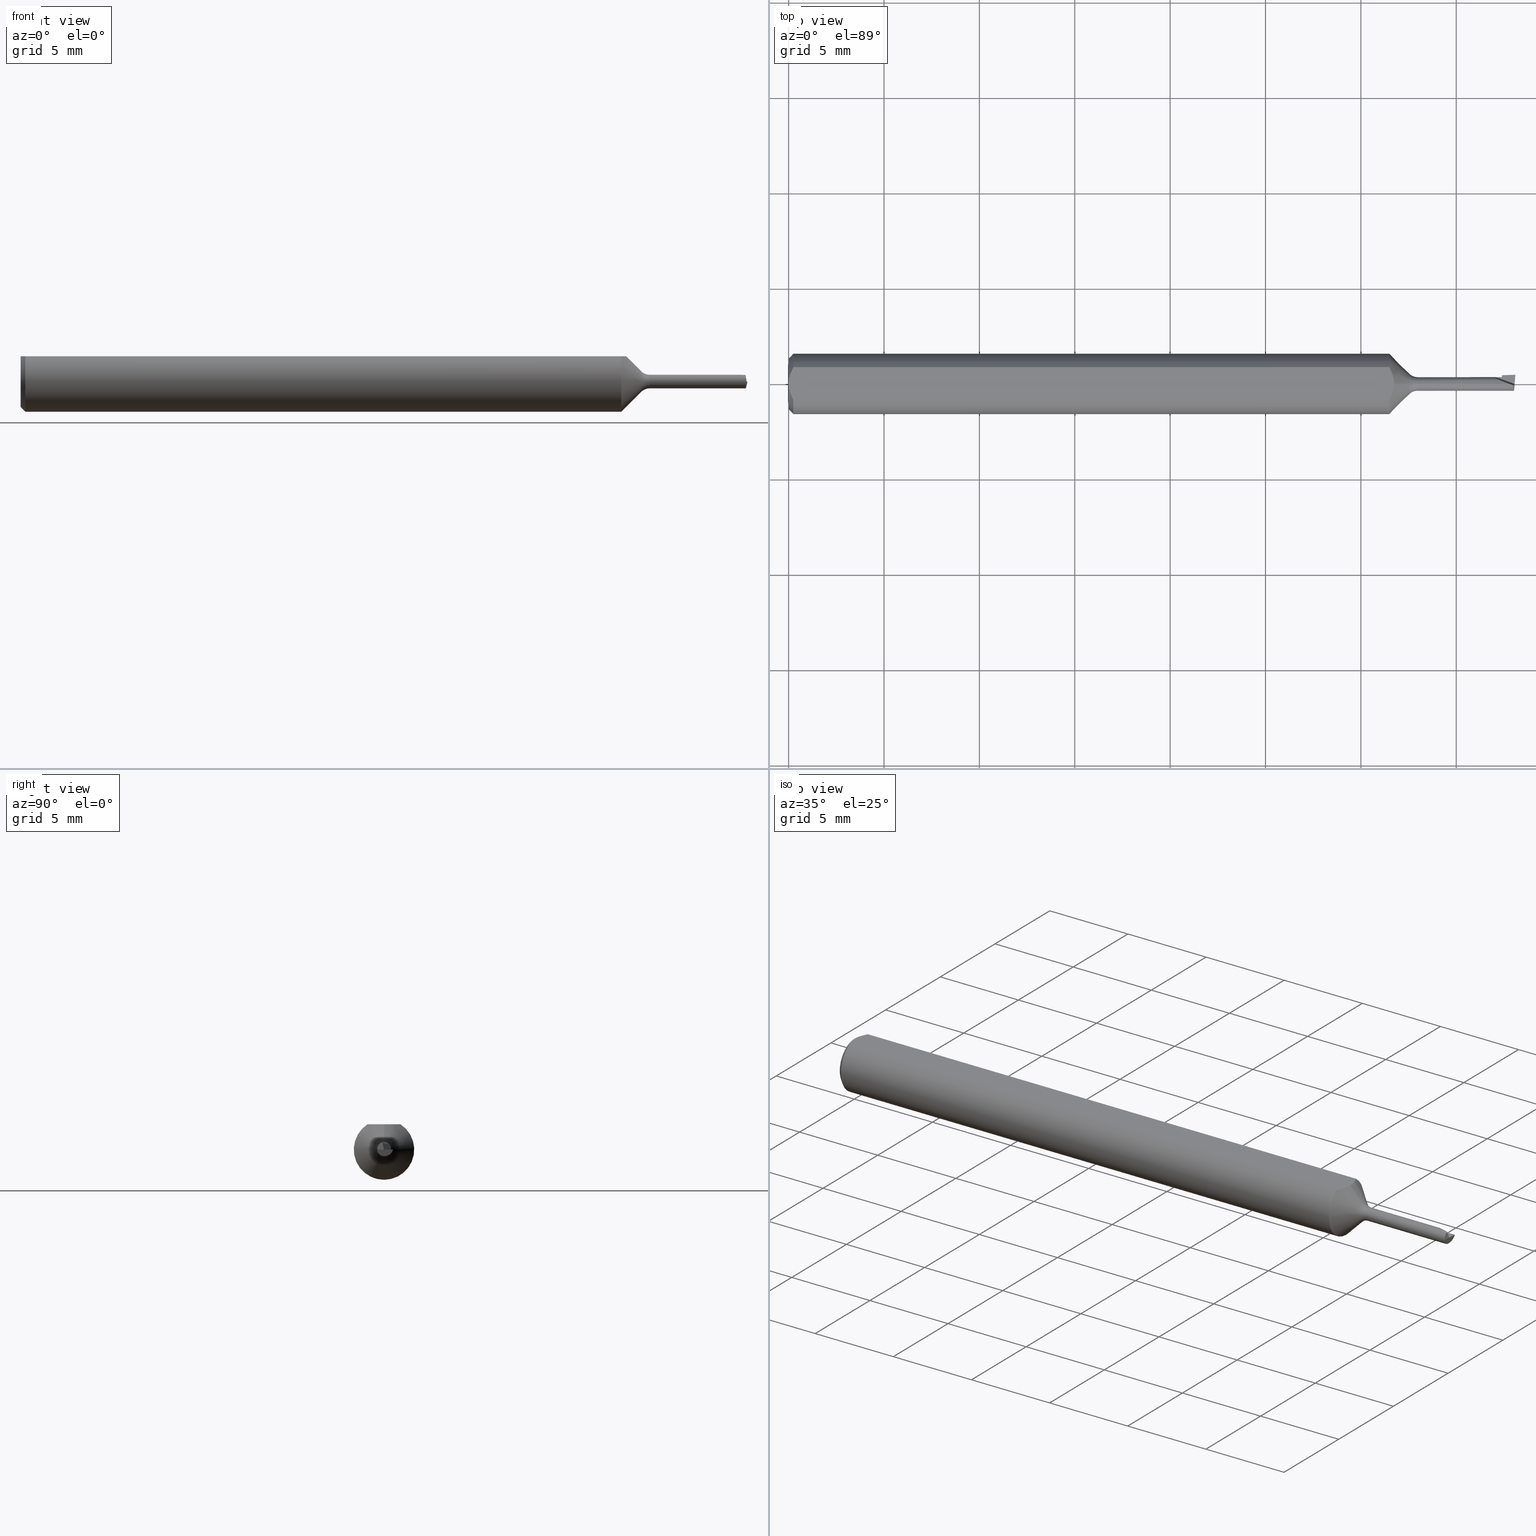
[diagram: canonical four-view strip — front | top / right | iso, engineering-drawing reading convention]
A machine part, canonical four-view strip (front | top / right | iso — engineering-drawing reading convention). The complete STEP part file that produces these views, byte-faithful:
ISO-10303-21;
HEADER;
FILE_DESCRIPTION (( 'STEP AP203' ),
    '1' );
FILE_NAME ('210028-MB035200.STEP',
    '2025-01-29T00:58:38',
    ( '' ),
    ( '' ),
    'SwSTEP 2.0',
    'SolidWorks 2024',
    '' );
FILE_SCHEMA (( 'CONFIG_CONTROL_DESIGN' ));
ENDSEC;

DATA;
#1 = ORIENTED_EDGE ( 'NONE', *, *, #77, .T. ) ;
#2 = PRODUCT_RELATED_PRODUCT_CATEGORY ( 'detail', '', ( #245 ) ) ;
#3 = APPROVAL_ROLE ( '' ) ;
#4 = FACE_OUTER_BOUND ( 'NONE', #319, .T. ) ;
#5 = EDGE_LOOP ( 'NONE', ( #413, #553, #54, #26 ) ) ;
#6 = CARTESIAN_POINT ( 'NONE',  ( 0.007163450771416182694, -0.02864528976632487248, 0.05235000000000001458 ) ) ;
#7 = ORIENTED_EDGE ( 'NONE', *, *, #239, .F. ) ;
#8 = VERTEX_POINT ( 'NONE', #613 ) ;
#9 = CARTESIAN_POINT ( 'NONE',  ( 1.499134075467371430, 0.01675535336588558633, -0.004745920181577928734 ) ) ;
#10 = ORIENTED_EDGE ( 'NONE', *, *, #612, .T. ) ;
#11 = ORIENTED_EDGE ( 'NONE', *, *, #416, .T. ) ;
#12 = DIRECTION ( 'NONE',  ( -1.000000000000000000, -0.000000000000000000, -0.000000000000000000 ) ) ;
#13 = DIRECTION ( 'NONE',  ( -0.1593925713349158002, -0.7010550863643477681, -0.6950653020299033535 ) ) ;
#14 = VERTEX_POINT ( 'NONE', #271 ) ;
#15 = CARTESIAN_POINT ( 'NONE',  ( 1.495443673491786640, 0.02281007852008725550, -0.03465938240595513309 ) ) ;
#16 = EDGE_LOOP ( 'NONE', ( #510, #365, #451 ) ) ;
#17 = VECTOR ( 'NONE', #444, 39.37007874015748854 ) ;
#18 = EDGE_CURVE ( 'NONE', #53, #417, #112, .T. ) ;
#19 = VECTOR ( 'NONE', #251, 39.37007874015748143 ) ;
#20 = EDGE_CURVE ( 'NONE', #551, #607, #581, .T. ) ;
#21 = CC_DESIGN_APPROVAL ( #184, ( #66 ) ) ;
#22 = CARTESIAN_POINT ( 'NONE',  ( 1.459843793476639284, 0.01400000000000005407, -4.473209412501315043E-18 ) ) ;
#23 = CARTESIAN_POINT ( 'NONE',  ( 0.000000000000000000, -0.03386738844375220686, 0.05235000000000000070 ) ) ;
#24 = CC_DESIGN_DATE_AND_TIME_ASSIGNMENT ( #452, #187, ( #253 ) ) ;
#25 = DIRECTION ( 'NONE',  ( -1.000000000000000000, -0.000000000000000000, -0.000000000000000000 ) ) ;
#26 = ORIENTED_EDGE ( 'NONE', *, *, #636, .F. ) ;
#27 = CARTESIAN_POINT ( 'NONE',  ( 0.000000000000000000, 0.000000000000000000, 0.000000000000000000 ) ) ;
#28 = ORIENTED_EDGE ( 'NONE', *, *, #18, .F. ) ;
#29 = AXIS2_PLACEMENT_3D ( 'NONE', #343, #579, #483 ) ;
#30 =( NAMED_UNIT ( * ) PLANE_ANGLE_UNIT ( ) SI_UNIT ( $, .RADIAN. ) );
#31 = DIRECTION ( 'NONE',  ( 1.000000000000000000, 0.000000000000000000, 0.000000000000000000 ) ) ;
#32 = CONICAL_SURFACE ( 'NONE', #399, 0.05235000000000033377, 0.7853981633974376209 ) ;
#33 = CARTESIAN_POINT ( 'NONE',  ( 1.470115918604895766, 0.01515687352215219601, -0.005999999999999994053 ) ) ;
#34 = CARTESIAN_POINT ( 'NONE',  ( 0.009999999999999890921, 0.03386738844375217911, 0.05235000000000001458 ) ) ;
#35 = DIRECTION ( 'NONE',  ( 0.000000000000000000, 0.000000000000000000, -1.000000000000000000 ) ) ;
#36 = EDGE_CURVE ( 'NONE', #8, #101, #268, .T. ) ;
#37 = DIRECTION ( 'NONE',  ( 0.000000000000000000, 0.9396926207859103153, 0.3420201433256629397 ) ) ;
#38 = VECTOR ( 'NONE', #348, 39.37007874015748854 ) ;
#39 = CARTESIAN_POINT ( 'NONE',  ( 0.009999999999999887451, 0.000000000000000000, 0.000000000000000000 ) ) ;
#40 = APPROVAL_STATUS ( 'not_yet_approved' ) ;
#41 = LINE ( 'NONE', #9, #270 ) ;
#42 = ADVANCED_FACE ( 'NONE', ( #420 ), #616, .T. ) ;
#43 = APPROVAL_STATUS ( 'not_yet_approved' ) ;
#44 = VECTOR ( 'NONE', #476, 39.37007874015748854 ) ;
#45 = LINE ( 'NONE', #139, #115 ) ;
#46 = EDGE_LOOP ( 'NONE', ( #495, #280, #256, #91 ) ) ;
#47 = PERSON_AND_ORGANIZATION ( #161, #446 ) ;
#48 = CARTESIAN_POINT ( 'NONE',  ( 0.004679365186825695105, -0.02325953974091124477, 0.05235000000000000764 ) ) ;
#49 = EDGE_LOOP ( 'NONE', ( #549, #313, #509, #266, #457, #532 ) ) ;
#50 = CARTESIAN_POINT ( 'NONE',  ( 0.000000000000000000, 0.000000000000000000, -0.05235000000000033377 ) ) ;
#51 = VERTEX_POINT ( 'NONE', #520 ) ;
#52 = CARTESIAN_POINT ( 'NONE',  ( 1.239649999999999919, 0.000000000000000000, 0.000000000000000000 ) ) ;
#53 = VERTEX_POINT ( 'NONE', #71 ) ;
#54 = ORIENTED_EDGE ( 'NONE', *, *, #588, .F. ) ;
#55 = DIRECTION ( 'NONE',  ( 0.000000000000000000, -0.4228298219691066784, -0.9062091048171904140 ) ) ;
#56 = ORIENTED_EDGE ( 'NONE', *, *, #369, .F. ) ;
#57 = TOROIDAL_SURFACE ( 'NONE', #250, 0.03900000000000000688, 0.02499999999999986955 ) ;
#58 = ORIENTED_EDGE ( 'NONE', *, *, #167, .F. ) ;
#59 = CARTESIAN_POINT ( 'NONE',  ( 1.464808352819063186, 0.008201010126776724432, 0.01400000000000005580 ) ) ;
#60 = EDGE_CURVE ( 'NONE', #166, #261, #204, .T. ) ;
#61 = CARTESIAN_POINT ( 'NONE',  ( 1.249649999999999928, 0.005921060704595572551, 0.05235000000000002152 ) ) ;
#62 = EDGE_CURVE ( 'NONE', #94, #310, #605, .T. ) ;
#63 = FACE_OUTER_BOUND ( 'NONE', #206, .T. ) ;
#64 = ORIENTED_EDGE ( 'NONE', *, *, #416, .F. ) ;
#65 = AXIS2_PLACEMENT_3D ( 'NONE', #116, #330, #159 ) ;
#66 = PRODUCT_DEFINITION_FORMATION_WITH_SPECIFIED_SOURCE ( 'ANY', '', #245, .NOT_KNOWN. ) ;
#67 = CARTESIAN_POINT ( 'NONE',  ( 0.000000000000000000, 0.000000000000000000, 0.000000000000000000 ) ) ;
#68 = CARTESIAN_POINT ( 'NONE',  ( 0.000000000000000000, 0.000000000000000000, 0.000000000000000000 ) ) ;
#69 = LINE ( 'NONE', #611, #437 ) ;
#70 = CARTESIAN_POINT ( 'NONE',  ( 1.239649999999999919, 0.03386738844375220686, 0.05235000000000000070 ) ) ;
#71 = CARTESIAN_POINT ( 'NONE',  ( 1.498905260308435183, 0.01616221948760026075, -0.005999999999999994053 ) ) ;
#72 = FACE_OUTER_BOUND ( 'NONE', #46, .T. ) ;
#73 = DIRECTION ( 'NONE',  ( -0.7071067811865507924, 0.000000000000000000, 0.7071067811865442421 ) ) ;
#74 = CARTESIAN_POINT ( 'NONE',  ( 1.298355339059327429, 0.000000000000000000, 0.000000000000000000 ) ) ;
#75 = LINE ( 'NONE', #129, #176 ) ;
#76 =( BOUNDED_CURVE ( )  B_SPLINE_CURVE ( 3, ( #238, #565, #634, #622 ),
 .UNSPECIFIED., .F., .T. ) 
 B_SPLINE_CURVE_WITH_KNOTS ( ( 4, 4 ),
 ( 5.951623123754044897, 7.298880934359459616 ),
 .UNSPECIFIED. ) 
 CURVE ( )  GEOMETRIC_REPRESENTATION_ITEM ( )  RATIONAL_B_SPLINE_CURVE ( ( 1.000000000000000000, 0.8543753402904480376, 0.8543753402904480376, 1.000000000000000000 ) ) 
 REPRESENTATION_ITEM ( '' )  );
#77 = EDGE_CURVE ( 'NONE', #357, #506, #620, .T. ) ;
#78 = CC_DESIGN_SECURITY_CLASSIFICATION ( #469, ( #66 ) ) ;
#79 = CARTESIAN_POINT ( 'NONE',  ( 1.239649999999999919, 0.03386738844375220686, 0.05235000000000000070 ) ) ;
#80 = FACE_OUTER_BOUND ( 'NONE', #349, .T. ) ;
#81 = CARTESIAN_POINT ( 'NONE',  ( -1.099542139246802830E-15, 0.005954997531773979953, 0.05235000000000002152 ) ) ;
#82 = CARTESIAN_POINT ( 'NONE',  ( 0.000000000000000000, 0.000000000000000000, 0.000000000000000000 ) ) ;
#83 =( BOUNDED_CURVE ( )  B_SPLINE_CURVE ( 3, ( #503, #106, #320, #508 ),
 .UNSPECIFIED., .F., .F. ) 
 B_SPLINE_CURVE_WITH_KNOTS ( ( 4, 4 ),
 ( 4.766624254856835385, 4.990162771046303014 ),
 .UNSPECIFIED. ) 
 CURVE ( )  GEOMETRIC_REPRESENTATION_ITEM ( )  RATIONAL_B_SPLINE_CURVE ( ( 1.000000000000000000, 0.9958402108223218807, 0.9958402108223218807, 1.000000000000000000 ) ) 
 REPRESENTATION_ITEM ( '' )  );
#84 = AXIS2_PLACEMENT_3D ( 'NONE', #324, #276, #367 ) ;
#85 = EDGE_CURVE ( 'NONE', #506, #357, #606, .T. ) ;
#86 = CARTESIAN_POINT ( 'NONE',  ( 1.496362627902979137, 1.714505518806302634E-18, -0.01400000000000006795 ) ) ;
#87 = VERTEX_POINT ( 'NONE', #609 ) ;
#88 = APPROVAL_DATE_TIME ( #137, #184 ) ;
#89 = CARTESIAN_POINT ( 'NONE',  ( 1.496362627902979137, 1.714505518806302634E-18, -0.01400000000000006795 ) ) ;
#90 = ORIENTED_EDGE ( 'NONE', *, *, #453, .F. ) ;
#91 = ORIENTED_EDGE ( 'NONE', *, *, #347, .T. ) ;
#92 = LINE ( 'NONE', #96, #628 ) ;
#93 = AXIS2_PLACEMENT_3D ( 'NONE', #15, #165, #462 ) ;
#94 = VERTEX_POINT ( 'NONE', #338 ) ;
#95 = DATE_AND_TIME ( #591, #243 ) ;
#96 = CARTESIAN_POINT ( 'NONE',  ( 1.471999999999999975, 0.01761096046884075284, -0.003613161509207814953 ) ) ;
#97 = ORIENTED_EDGE ( 'NONE', *, *, #362, .T. ) ;
#98 = EDGE_CURVE ( 'NONE', #105, #350, #124, .T. ) ;
#99 = COORDINATED_UNIVERSAL_TIME_OFFSET ( 8, 0, .BEHIND. ) ;
#100 = CARTESIAN_POINT ( 'NONE',  ( 1.242499562682860104, -0.02862133194396088848, 0.05235000000000002152 ) ) ;
#101 = VERTEX_POINT ( 'NONE', #635 ) ;
#102 = ORIENTED_EDGE ( 'NONE', *, *, #60, .T. ) ;
#103 = DIRECTION ( 'NONE',  ( 0.000000000000000000, -1.224646799147353207E-16, 1.000000000000000000 ) ) ;
#104 = ORIENTED_EDGE ( 'NONE', *, *, #369, .T. ) ;
#105 = VERTEX_POINT ( 'NONE', #529 ) ;
#106 = CARTESIAN_POINT ( 'NONE',  ( 1.493158059509906543, -0.002084192502463034190, 0.01388340427013589305 ) ) ;
#107 = EDGE_CURVE ( 'NONE', #169, #428, #175, .T. ) ;
#108 = DIRECTION ( 'NONE',  ( 0.000000000000000000, 0.000000000000000000, 1.000000000000000000 ) ) ;
#109 = CIRCLE ( 'NONE', #477, 0.06235000000000000264 ) ;
#110 = EDGE_LOOP ( 'NONE', ( #505, #186, #199, #470 ) ) ;
#111 = CYLINDRICAL_SURFACE ( 'NONE', #307, 0.01400000000000006795 ) ;
#112 = LINE ( 'NONE', #119, #228 ) ;
#113 = DIRECTION ( 'NONE',  ( -0.000000000000000000, 0.9396926207859103153, 0.3420201433256629397 ) ) ;
#114 = CARTESIAN_POINT ( 'NONE',  ( 1.244987470951200326, 0.02320690041070302967, 0.05235000000000002152 ) ) ;
#115 = VECTOR ( 'NONE', #218, 39.37007874015748143 ) ;
#116 = CARTESIAN_POINT ( 'NONE',  ( 1.298355339059327429, 0.000000000000000000, 0.000000000000000000 ) ) ;
#117 = CARTESIAN_POINT ( 'NONE',  ( 1.249650000000000150, -3.532469938474420466E-21, 0.05235000000000001458 ) ) ;
#118 = DIRECTION ( 'NONE',  ( 0.000000000000000000, 0.000000000000000000, 1.000000000000000000 ) ) ;
#119 = CARTESIAN_POINT ( 'NONE',  ( 1.498061498182345908, 0.01245110719910164088, -0.009679404705626219740 ) ) ;
#120 = DIRECTION ( 'NONE',  ( 1.000000000000000000, 0.000000000000000000, 0.000000000000000000 ) ) ;
#121 = CARTESIAN_POINT ( 'NONE',  ( 1.280677669529663998, 0.000000000000000000, 0.02132233047033647161 ) ) ;
#122 = ADVANCED_FACE ( 'NONE', ( #335 ), #131, .F. ) ;
#123 = ADVANCED_FACE ( 'NONE', ( #80 ), #521, .T. ) ;
#124 = LINE ( 'NONE', #436, #258 ) ;
#125 = CARTESIAN_POINT ( 'NONE',  ( 0.007185421074056205608, 0.02868573718286560742, 0.05235000000000002152 ) ) ;
#126 = CARTESIAN_POINT ( 'NONE',  ( 1.500000000000000222, 0.06235000000000000264, 0.05235000000000001458 ) ) ;
#127 = APPROVAL ( #533, 'UNSPECIFIED' ) ;
#128 = CARTESIAN_POINT ( 'NONE',  ( 1.499999999999999778, 0.01899999999999998912, -2.134256245050205639E-18 ) ) ;
#129 = CARTESIAN_POINT ( 'NONE',  ( 0.000000000000000000, 0.000000000000000000, -0.05235000000000033377 ) ) ;
#130 = PERSON_AND_ORGANIZATION_ROLE ( 'creator' ) ;
#131 = PLANE ( 'NONE',  #445 ) ;
#132 = ORIENTED_EDGE ( 'NONE', *, *, #418, .F. ) ;
#133 = AXIS2_PLACEMENT_3D ( 'NONE', #164, #375, #555 ) ;
#134 = PERSON_AND_ORGANIZATION ( #161, #446 ) ;
#135 = LINE ( 'NONE', #201, #17 ) ;
#136 = ORIENTED_EDGE ( 'NONE', *, *, #248, .F. ) ;
#137 = DATE_AND_TIME ( #306, #273 ) ;
#138 = PRODUCT_DEFINITION_SHAPE ( 'NONE', 'NONE',  #253 ) ;
#139 = CARTESIAN_POINT ( 'NONE',  ( 0.000000000000000000, 0.03386738844375220686, 0.05235000000000000070 ) ) ;
#140 = ORIENTED_EDGE ( 'NONE', *, *, #98, .F. ) ;
#141 = PERSON_AND_ORGANIZATION_ROLE ( 'creator' ) ;
#142 = AXIS2_PLACEMENT_3D ( 'NONE', #583, #393, #391 ) ;
#143 = PLANE ( 'NONE',  #304 ) ;
#144 = VECTOR ( 'NONE', #55, 39.37007874015748143 ) ;
#145 = EDGE_CURVE ( 'NONE', #364, #373, #569, .T. ) ;
#146 = ORIENTED_EDGE ( 'NONE', *, *, #18, .T. ) ;
#147 = PERSON_AND_ORGANIZATION ( #161, #446 ) ;
#148 = CARTESIAN_POINT ( 'NONE',  ( 1.560200597524541877, 0.004788282006559283974, -0.01315569669100274432 ) ) ;
#149 = ORIENTED_EDGE ( 'NONE', *, *, #145, .F. ) ;
#150 = CARTESIAN_POINT ( 'NONE',  ( 1.471999999999999975, 0.01802221845423144023, -2.215929918207309759E-18 ) ) ;
#151 = VERTEX_POINT ( 'NONE', #383 ) ;
#152 = ORIENTED_EDGE ( 'NONE', *, *, #167, .T. ) ;
#153 = EDGE_CURVE ( 'NONE', #94, #412, #426, .T. ) ;
#154 = LINE ( 'NONE', #275, #144 ) ;
#155 = CARTESIAN_POINT ( 'NONE',  ( 1.471999999999999975, 0.01400000000000000203, -3.964058809059676423E-18 ) ) ;
#156 = APPROVAL_PERSON_ORGANIZATION ( #47, #127, #182 ) ;
#157 = ORIENTED_EDGE ( 'NONE', *, *, #287, .T. ) ;
#158 = CC_DESIGN_PERSON_AND_ORGANIZATION_ASSIGNMENT ( #200, #141, ( #253 ) ) ;
#159 = DIRECTION ( 'NONE',  ( 0.000000000000000000, 0.000000000000000000, 1.000000000000000000 ) ) ;
#160 = ORIENTED_EDGE ( 'NONE', *, *, #300, .F. ) ;
#161 = PERSON ( 'UNSPECIFIED', 'UNSPECIFIED', 'UNSPECIFIED', ('UNSPECIFIED'), ('UNSPECIFIED'), ('UNSPECIFIED') ) ;
#162 = AXIS2_PLACEMENT_3D ( 'NONE', #27, #511, #216 ) ;
#163 = DIRECTION ( 'NONE',  ( 0.03162968562512431803, -0.9057556888204042478, 0.4226182617407003295 ) ) ;
#164 = CARTESIAN_POINT ( 'NONE',  ( 1.280677669529663998, 0.000000000000000000, 0.000000000000000000 ) ) ;
#165 = DIRECTION ( 'NONE',  ( -0.9864997997699062049, 0.08630754905046410241, 0.1391731009600518376 ) ) ;
#166 = VERTEX_POINT ( 'NONE', #181 ) ;
#167 = EDGE_CURVE ( 'NONE', #101, #87, #336, .T. ) ;
#168 = DIRECTION ( 'NONE',  ( -0.000000000000000000, 1.000000000000000000, 1.224646799147353207E-16 ) ) ;
#169 = VERTEX_POINT ( 'NONE', #240 ) ;
#170 = AXIS2_PLACEMENT_3D ( 'NONE', #68, #463, #415 ) ;
#171 = CARTESIAN_POINT ( 'NONE',  ( 1.249650000000000150, -3.532469938474420466E-21, 0.05235000000000001458 ) ) ;
#172 = CARTESIAN_POINT ( 'NONE',  ( 1.491155917282976251, 0.02968992960932576378, 0.06931876481191033557 ) ) ;
#173 = ADVANCED_FACE ( 'NONE', ( #389 ), #293, .F. ) ;
#174 = ADVANCED_FACE ( 'NONE', ( #183 ), #237, .F. ) ;
#175 = LINE ( 'NONE', #344, #384 ) ;
#176 = VECTOR ( 'NONE', #577, 39.37007874015748143 ) ;
#177 = CIRCLE ( 'NONE', #385, 0.01400000000000013560 ) ;
#178 = LOCAL_TIME ( 16, 58, 38.00000000000000000, #99 ) ;
#179 = DIRECTION ( 'NONE',  ( 0.000000000000000000, 0.000000000000000000, -1.000000000000000000 ) ) ;
#180 = DIRECTION ( 'NONE',  ( -1.000000000000000000, -0.000000000000000000, -0.000000000000000000 ) ) ;
#181 = CARTESIAN_POINT ( 'NONE',  ( 0.000000000000000000, 0.000000000000000000, 0.05235000000000033377 ) ) ;
#182 = APPROVAL_ROLE ( '' ) ;
#183 = FACE_OUTER_BOUND ( 'NONE', #203, .T. ) ;
#184 = APPROVAL ( #43, 'UNSPECIFIED' ) ;
#185 = AXIS2_PLACEMENT_3D ( 'NONE', #82, #31, #629 ) ;
#186 = ORIENTED_EDGE ( 'NONE', *, *, #264, .T. ) ;
#187 = DATE_TIME_ROLE ( 'creation_date' ) ;
#188 = CARTESIAN_POINT ( 'NONE',  ( 1.496900660646560244, 0.004788282006559283106, -0.01315569669100274432 ) ) ;
#189 = EDGE_LOOP ( 'NONE', ( #11, #157, #7, #132 ) ) ;
#190 = ORIENTED_EDGE ( 'NONE', *, *, #207, .T. ) ;
#191 = CLOSED_SHELL ( 'NONE', ( #123, #567, #395, #409, #122, #42, #174, #561, #325, #496, #294, #632, #580, #592, #443, #642, #478, #219, #173 ) ) ;
#192 = DATE_AND_TIME ( #314, #630 ) ;
#193 = AXIS2_PLACEMENT_3D ( 'NONE', #617, #209, #212 ) ;
#194 = LINE ( 'NONE', #490, #19 ) ;
#195 = EDGE_LOOP ( 'NONE', ( #316, #224, #260, #377, #556 ) ) ;
#196 = COORDINATED_UNIVERSAL_TIME_OFFSET ( 8, 0, .BEHIND. ) ;
#197 = EDGE_CURVE ( 'NONE', #357, #428, #571, .T. ) ;
#198 = CARTESIAN_POINT ( 'NONE',  ( 0.000000000000000000, 0.000000000000000000, 0.000000000000000000 ) ) ;
#199 = ORIENTED_EDGE ( 'NONE', *, *, #388, .T. ) ;
#200 = PERSON_AND_ORGANIZATION ( #161, #446 ) ;
#201 = CARTESIAN_POINT ( 'NONE',  ( 1.497253126782585930, -0.001536370480482567372, 0.006735109514287551322 ) ) ;
#202 = CIRCLE ( 'NONE', #484, 0.06235000000000000264 ) ;
#203 = EDGE_LOOP ( 'NONE', ( #461, #97, #518, #322, #473 ) ) ;
#204 = CIRCLE ( 'NONE', #170, 0.05235000000000033377 ) ;
#205 = DIRECTION ( 'NONE',  ( -0.1627401076574671590, -0.4218543546513214282, -0.8919386530593642615 ) ) ;
#206 = EDGE_LOOP ( 'NONE', ( #598, #10, #410, #211, #566, #104, #512, #559 ) ) ;
#207 = EDGE_CURVE ( 'NONE', #261, #87, #75, .T. ) ;
#208 = VERTEX_POINT ( 'NONE', #440 ) ;
#209 = DIRECTION ( 'NONE',  ( -1.000000000000000000, -0.000000000000000000, -0.000000000000000000 ) ) ;
#210 = ORIENTED_EDGE ( 'NONE', *, *, #332, .T. ) ;
#211 = ORIENTED_EDGE ( 'NONE', *, *, #107, .F. ) ;
#212 = DIRECTION ( 'NONE',  ( 0.000000000000000000, 0.000000000000000000, -1.000000000000000000 ) ) ;
#213 = VECTOR ( 'NONE', #450, 39.37007874015748143 ) ;
#214 = CARTESIAN_POINT ( 'NONE',  ( 1.242494366674541162, 0.02863089781642877071, 0.05235000000000002152 ) ) ;
#215 = CC_DESIGN_APPROVAL ( #127, ( #253 ) ) ;
#216 = DIRECTION ( 'NONE',  ( 0.000000000000000000, 0.000000000000000000, 1.000000000000000000 ) ) ;
#217 = DIRECTION ( 'NONE',  ( -0.000000000000000000, 1.000000000000000000, 1.150753554054429622E-16 ) ) ;
#218 = DIRECTION ( 'NONE',  ( 1.000000000000000000, 0.000000000000000000, 0.000000000000000000 ) ) ;
#219 = ADVANCED_FACE ( 'NONE', ( #283 ), #623, .T. ) ;
#220 = B_SPLINE_CURVE_WITH_KNOTS ( 'NONE', 3,
 ( #429, #125, #226, #482, #81, #281 ),
 .UNSPECIFIED., .F., .F.,
 ( 4, 2, 4 ),
 ( 0.0009229516234078821539, 0.001371626545108044996, 0.001820301466808207621 ),
 .UNSPECIFIED. ) ;
#221 = ORIENTED_EDGE ( 'NONE', *, *, #247, .T. ) ;
#222 =( BOUNDED_CURVE ( )  B_SPLINE_CURVE ( 3, ( #188, #312, #498, #86 ),
 .UNSPECIFIED., .F., .T. ) 
 B_SPLINE_CURVE_WITH_KNOTS ( ( 4, 4 ),
 ( 5.379018757165730413, 5.728084607564589703 ),
 .UNSPECIFIED. ) 
 CURVE ( )  GEOMETRIC_REPRESENTATION_ITEM ( )  RATIONAL_B_SPLINE_CURVE ( ( 1.000000000000000000, 0.9898718353414723836, 0.9898718353414723836, 1.000000000000000000 ) ) 
 REPRESENTATION_ITEM ( '' )  );
#223 = FACE_OUTER_BOUND ( 'NONE', #318, .T. ) ;
#224 = ORIENTED_EDGE ( 'NONE', *, *, #85, .T. ) ;
#225 = VECTOR ( 'NONE', #73, 39.37007874015748143 ) ;
#226 = CARTESIAN_POINT ( 'NONE',  ( 0.004671770759546769666, 0.02323517832780105236, 0.05235000000000002152 ) ) ;
#227 = DIRECTION ( 'NONE',  ( 1.000000000000000000, 0.000000000000000000, 0.000000000000000000 ) ) ;
#228 = VECTOR ( 'NONE', #13, 39.37007874015748143 ) ;
#229 = EDGE_CURVE ( 'NONE', #357, #607, #340, .T. ) ;
#230 = VECTOR ( 'NONE', #390, 39.37007874015748143 ) ;
#231 = FACE_OUTER_BOUND ( 'NONE', #5, .T. ) ;
#232 = CARTESIAN_POINT ( 'NONE',  ( 1.405832867359513516, 0.03365836943178409507, -4.473209412501315043E-18 ) ) ;
#233 = CC_DESIGN_PERSON_AND_ORGANIZATION_ASSIGNMENT ( #254, #406, ( #469 ) ) ;
#234 = DIRECTION ( 'NONE',  ( -1.000000000000000000, 0.000000000000000000, -0.000000000000000000 ) ) ;
#235 = CIRCLE ( 'NONE', #328, 0.06235000000000000264 ) ;
#236 = LINE ( 'NONE', #568, #346 ) ;
#237 = PLANE ( 'NONE',  #142 ) ;
#238 = CARTESIAN_POINT ( 'NONE',  ( 1.496140245165600069, -0.003103540699875354403, 0.01365166785137329232 ) ) ;
#239 = EDGE_CURVE ( 'NONE', #499, #53, #289, .T. ) ;
#240 = CARTESIAN_POINT ( 'NONE',  ( 1.487340442959101727, 0.000000000000000000, 0.01400000000000006795 ) ) ;
#241 = CARTESIAN_POINT ( 'NONE',  ( 0.000000000000000000, 0.000000000000000000, 0.05235000000000033377 ) ) ;
#242 = APPROVAL_ROLE ( '' ) ;
#243 = LOCAL_TIME ( 16, 58, 38.00000000000000000, #638 ) ;
#244 = CARTESIAN_POINT ( 'NONE',  ( 0.001055043921644571291, -0.01186408073217194367, 0.05235000000000002152 ) ) ;
#245 = PRODUCT ( '210028-MB035200', '210028-MB035200', '', ( #358 ) ) ;
#246 = VERTEX_POINT ( 'NONE', #34 ) ;
#247 = EDGE_CURVE ( 'NONE', #350, #373, #434, .T. ) ;
#248 = EDGE_CURVE ( 'NONE', #208, #364, #222, .T. ) ;
#249 = PERSON_AND_ORGANIZATION_ROLE ( 'design_owner' ) ;
#250 = AXIS2_PLACEMENT_3D ( 'NONE', #74, #485, #631 ) ;
#251 = DIRECTION ( 'NONE',  ( 1.000000000000000000, 0.000000000000000000, 0.000000000000000000 ) ) ;
#252 = ORIENTED_EDGE ( 'NONE', *, *, #538, .T. ) ;
#253 = PRODUCT_DEFINITION ( 'UNKNOWN', '', #66, #291 ) ;
#254 = PERSON_AND_ORGANIZATION ( #161, #446 ) ;
#255 = CARTESIAN_POINT ( 'NONE',  ( 1.249650000000000150, -3.532469938474420466E-21, 0.05235000000000001458 ) ) ;
#256 = ORIENTED_EDGE ( 'NONE', *, *, #197, .T. ) ;
#257 = CARTESIAN_POINT ( 'NONE',  ( 0.000000000000000000, 0.000000000000000000, 0.000000000000000000 ) ) ;
#258 = VECTOR ( 'NONE', #442, 39.37007874015748854 ) ;
#259 = DIRECTION ( 'NONE',  ( 0.000000000000000000, 0.000000000000000000, 1.000000000000000000 ) ) ;
#260 = ORIENTED_EDGE ( 'NONE', *, *, #229, .T. ) ;
#261 = VERTEX_POINT ( 'NONE', #50 ) ;
#262 = CARTESIAN_POINT ( 'NONE',  ( 1.471999999999999975, 0.01522266709425429583, -0.005999999999999994053 ) ) ;
#263 = CONICAL_SURFACE ( 'NONE', #621, 0.02132233047033647161, 0.7853981633974437271 ) ;
#264 = EDGE_CURVE ( 'NONE', #208, #412, #404, .T. ) ;
#265 = EDGE_LOOP ( 'NONE', ( #541, #546, #64, #491, #56 ) ) ;
#266 = ORIENTED_EDGE ( 'NONE', *, *, #36, .F. ) ;
#267 = CARTESIAN_POINT ( 'NONE',  ( 1.298355339059327429, 0.000000000000000000, 0.01400000000000013560 ) ) ;
#268 = LINE ( 'NONE', #23, #487 ) ;
#269 = DIRECTION ( 'NONE',  ( 0.000000000000000000, 0.000000000000000000, 1.000000000000000000 ) ) ;
#270 = VECTOR ( 'NONE', #205, 39.37007874015748854 ) ;
#271 = CARTESIAN_POINT ( 'NONE',  ( 1.496140245165600069, -0.003103540699875354403, 0.01365166785137329232 ) ) ;
#272 = AXIS2_PLACEMENT_3D ( 'NONE', #309, #501, #397 ) ;
#273 = LOCAL_TIME ( 16, 58, 38.00000000000000000, #196 ) ;
#274 = EDGE_CURVE ( 'NONE', #166, #101, #458, .T. ) ;
#275 = CARTESIAN_POINT ( 'NONE',  ( 1.471999999999999975, 0.01730310589320959921, -0.001541202432580578109 ) ) ;
#276 = DIRECTION ( 'NONE',  ( -1.000000000000000000, -0.000000000000000000, -0.000000000000000000 ) ) ;
#277 = APPLICATION_CONTEXT ( 'configuration controlled 3d designs of mechanical parts and assemblies' ) ;
#278 = EDGE_CURVE ( 'NONE', #417, #51, #597, .T. ) ;
#279 = CYLINDRICAL_SURFACE ( 'NONE', #162, 0.06235000000000000264 ) ;
#280 = ORIENTED_EDGE ( 'NONE', *, *, #77, .F. ) ;
#281 = CARTESIAN_POINT ( 'NONE',  ( 0.000000000000000000, 0.000000000000000000, 0.05235000000000033377 ) ) ;
#282 = EDGE_CURVE ( 'NONE', #506, #321, #363, .T. ) ;
#283 = FACE_OUTER_BOUND ( 'NONE', #16, .T. ) ;
#284 = AXIS2_PLACEMENT_3D ( 'NONE', #126, #35, #234 ) ;
#285 = FACE_OUTER_BOUND ( 'NONE', #396, .T. ) ;
#286 = CARTESIAN_POINT ( 'NONE',  ( 1.470115918604895766, 0.01515687352215219601, -0.005999999999999994053 ) ) ;
#287 = EDGE_CURVE ( 'NONE', #641, #53, #41, .T. ) ;
#288 = DIRECTION ( 'NONE',  ( 4.188400406518391662E-17, 1.150753554054429622E-16, -1.000000000000000000 ) ) ;
#289 = LINE ( 'NONE', #286, #44 ) ;
#290 = APPLICATION_CONTEXT ( 'configuration controlled 3d designs of mechanical parts and assemblies' ) ;
#291 = DESIGN_CONTEXT ( 'detailed design', #277, 'design' ) ;
#292 = CARTESIAN_POINT ( 'NONE',  ( 1.418351673465832352, 0.06805350652742639395, 9.160938846956043601E-21 ) ) ;
#293 = PLANE ( 'NONE',  #284 ) ;
#294 = ADVANCED_FACE ( 'NONE', ( #4 ), #143, .F. ) ;
#295 = DIRECTION ( 'NONE',  ( 0.000000000000000000, -0.7073221891495885538, -0.7068913075831626536 ) ) ;
#296 = CARTESIAN_POINT ( 'NONE',  ( 1.495645132487424922, -0.008201010126776844128, -0.01400000000000006795 ) ) ;
#297 = LINE ( 'NONE', #488, #38 ) ;
#298 = ORIENTED_EDGE ( 'NONE', *, *, #20, .T. ) ;
#299 = PERSON_AND_ORGANIZATION ( #161, #446 ) ;
#300 = EDGE_CURVE ( 'NONE', #350, #14, #135, .T. ) ;
#301 = CARTESIAN_POINT ( 'NONE',  ( 0.01000000000000840841, -0.03386738844395137393, 0.05235000000000001458 ) ) ;
#302 = EDGE_CURVE ( 'NONE', #607, #8, #543, .T. ) ;
#303 = ORIENTED_EDGE ( 'NONE', *, *, #371, .T. ) ;
#304 = AXIS2_PLACEMENT_3D ( 'NONE', #198, #448, #593 ) ;
#305 = ORIENTED_EDGE ( 'NONE', *, *, #85, .F. ) ;
#306 = CALENDAR_DATE ( 2025, 28, 1 ) ;
#307 = AXIS2_PLACEMENT_3D ( 'NONE', #67, #12, #326 ) ;
#308 = APPROVAL_PERSON_ORGANIZATION ( #134, #184, #3 ) ;
#309 = CARTESIAN_POINT ( 'NONE',  ( 1.280677669529663998, 0.000000000000000000, 0.000000000000000000 ) ) ;
#310 = VERTEX_POINT ( 'NONE', #150 ) ;
#311 = PERSON_AND_ORGANIZATION ( #161, #446 ) ;
#312 = CARTESIAN_POINT ( 'NONE',  ( 1.496687052279564112, 0.003249724067528478311, -0.01371568598450397317 ) ) ;
#313 = ORIENTED_EDGE ( 'NONE', *, *, #588, .T. ) ;
#314 = CALENDAR_DATE ( 2025, 28, 1 ) ;
#315 = CARTESIAN_POINT ( 'NONE',  ( 1.244984136213919790, -0.02321572383389657393, 0.05235000000000001458 ) ) ;
#316 = ORIENTED_EDGE ( 'NONE', *, *, #282, .F. ) ;
#317 = ORIENTED_EDGE ( 'NONE', *, *, #516, .T. ) ;
#318 = EDGE_LOOP ( 'NONE', ( #643, #210, #455, #152, #402, #303 ) ) ;
#319 = EDGE_LOOP ( 'NONE', ( #102, #564 ) ) ;
#320 = CARTESIAN_POINT ( 'NONE',  ( 1.490212539364918376, -0.001045357601660149016, 0.01400000000000006968 ) ) ;
#321 = VERTEX_POINT ( 'NONE', #408 ) ;
#322 = ORIENTED_EDGE ( 'NONE', *, *, #153, .F. ) ;
#323 = DIRECTION ( 'NONE',  ( 0.000000000000000000, -0.4228298219691066784, -0.9062091048171904140 ) ) ;
#324 = CARTESIAN_POINT ( 'NONE',  ( 0.000000000000000000, 0.000000000000000000, 0.000000000000000000 ) ) ;
#325 = ADVANCED_FACE ( 'NONE', ( #589 ), #354, .T. ) ;
#326 = DIRECTION ( 'NONE',  ( 0.000000000000000000, 0.000000000000000000, 1.000000000000000000 ) ) ;
#327 = CARTESIAN_POINT ( 'NONE',  ( 1.280677669529663998, 0.000000000000000000, 0.000000000000000000 ) ) ;
#328 = AXIS2_PLACEMENT_3D ( 'NONE', #427, #366, #471 ) ;
#329 = APPROVAL ( #40, 'UNSPECIFIED' ) ;
#330 = DIRECTION ( 'NONE',  ( -1.000000000000000000, -0.000000000000000000, -0.000000000000000000 ) ) ;
#331 = ORIENTED_EDGE ( 'NONE', *, *, #619, .T. ) ;
#332 = EDGE_CURVE ( 'NONE', #321, #8, #202, .T. ) ;
#333 = PLANE ( 'NONE',  #610 ) ;
#334 = EDGE_LOOP ( 'NONE', ( #160, #140, #465, #603 ) ) ;
#335 = FACE_OUTER_BOUND ( 'NONE', #334, .T. ) ;
#336 = CIRCLE ( 'NONE', #552, 0.06235000000000000264 ) ;
#337 = CARTESIAN_POINT ( 'NONE',  ( 1.560200597524541877, 0.004788282006559283974, -0.01315569669100274432 ) ) ;
#338 = CARTESIAN_POINT ( 'NONE',  ( 1.471999999999999975, 0.01400000000000006795, -6.561731279301039999E-17 ) ) ;
#339 = DIRECTION ( 'NONE',  ( 0.02467767077832644027, -0.7066760308408337465, 0.7071067811865486830 ) ) ;
#340 = LINE ( 'NONE', #121, #225 ) ;
#341 = EDGE_CURVE ( 'NONE', #641, #350, #297, .T. ) ;
#342 =( CONVERSION_BASED_UNIT ( 'INCH', #572 ) LENGTH_UNIT ( ) NAMED_UNIT ( #615 ) );
#343 = CARTESIAN_POINT ( 'NONE',  ( 1.298355339059327429, 0.000000000000000000, 0.03900000000000000688 ) ) ;
#344 = CARTESIAN_POINT ( 'NONE',  ( 0.000000000000000000, 0.000000000000000000, 0.01400000000000006795 ) ) ;
#345 = ORIENTED_EDGE ( 'NONE', *, *, #278, .T. ) ;
#346 = VECTOR ( 'NONE', #435, 39.37007874015748143 ) ;
#347 = EDGE_CURVE ( 'NONE', #428, #151, #573, .T. ) ;
#348 = DIRECTION ( 'NONE',  ( -0.08715574274766896279, -0.9961946980917445460, -1.182878904194729215E-16 ) ) ;
#349 = EDGE_LOOP ( 'NONE', ( #601, #190, #58, #536 ) ) ;
#350 = VERTEX_POINT ( 'NONE', #459 ) ;
#351 = APPLICATION_PROTOCOL_DEFINITION ( 'international standard', 'config_control_design', 1994, #290 ) ;
#352 = CC_DESIGN_PERSON_AND_ORGANIZATION_ASSIGNMENT ( #403, #249, ( #245 ) ) ;
#353 = EDGE_LOOP ( 'NONE', ( #618, #502, #449, #252, #379, #637 ) ) ;
#354 = CONICAL_SURFACE ( 'NONE', #272, 0.02132233047033647161, 0.7853981633974437271 ) ;
#355 = DIRECTION ( 'NONE',  ( 0.000000000000000000, 0.000000000000000000, 1.000000000000000000 ) ) ;
#356 = CARTESIAN_POINT ( 'NONE',  ( 1.248578451796299005, -0.01191733704899614575, 0.05235000000000002152 ) ) ;
#357 = VERTEX_POINT ( 'NONE', #545 ) ;
#358 = MECHANICAL_CONTEXT ( 'NONE', #290, 'mechanical' ) ;
#359 = CARTESIAN_POINT ( 'NONE',  ( 1.280677669529663998, 2.611232376085963916E-18, -0.02132233047033647161 ) ) ;
#360 =( BOUNDED_CURVE ( )  B_SPLINE_CURVE ( 3, ( #468, #59, #472, #22 ),
 .UNSPECIFIED., .F., .F. ) 
 B_SPLINE_CURVE_WITH_KNOTS ( ( 4, 4 ),
 ( 4.990162771046303014, 6.560959097841198684 ),
 .UNSPECIFIED. ) 
 CURVE ( )  GEOMETRIC_REPRESENTATION_ITEM ( )  RATIONAL_B_SPLINE_CURVE ( ( 1.000000000000000000, 0.8047378541243652705, 0.8047378541243652705, 1.000000000000000000 ) ) 
 REPRESENTATION_ITEM ( '' )  );
#361 = ORIENTED_EDGE ( 'NONE', *, *, #197, .F. ) ;
#362 = EDGE_CURVE ( 'NONE', #499, #51, #92, .T. ) ;
#363 = LINE ( 'NONE', #359, #213 ) ;
#364 = VERTEX_POINT ( 'NONE', #89 ) ;
#365 = ORIENTED_EDGE ( 'NONE', *, *, #540, .T. ) ;
#366 = DIRECTION ( 'NONE',  ( -1.000000000000000000, -0.000000000000000000, -0.000000000000000000 ) ) ;
#367 = DIRECTION ( 'NONE',  ( 0.000000000000000000, 0.000000000000000000, 1.000000000000000000 ) ) ;
#368 = EDGE_LOOP ( 'NONE', ( #305, #317, #590, #361 ) ) ;
#369 = EDGE_CURVE ( 'NONE', #105, #94, #194, .T. ) ;
#370 = DIRECTION ( 'NONE',  ( 0.9993908270190957621, 0.03489949670250165614, 4.587456144808678678E-17 ) ) ;
#371 = EDGE_CURVE ( 'NONE', #246, #551, #45, .T. ) ;
#372 = CIRCLE ( 'NONE', #193, 0.05235000000000033377 ) ;
#373 = VERTEX_POINT ( 'NONE', #608 ) ;
#374 = CARTESIAN_POINT ( 'NONE',  ( 1.470018275189427071, 0.01795301509892537062, -2.215929918207309759E-18 ) ) ;
#375 = DIRECTION ( 'NONE',  ( -1.000000000000000000, -0.000000000000000000, -0.000000000000000000 ) ) ;
#376 = ADVANCED_BREP_SHAPE_REPRESENTATION ( '210028-MB035200', ( #432, #493 ), #386 ) ;
#377 = ORIENTED_EDGE ( 'NONE', *, *, #302, .T. ) ;
#378 =( LENGTH_UNIT ( ) NAMED_UNIT ( * ) SI_UNIT ( $, .METRE. ) );
#379 = ORIENTED_EDGE ( 'NONE', *, *, #107, .T. ) ;
#380 = CARTESIAN_POINT ( 'NONE',  ( 0.000000000000000000, 1.714505518806302634E-18, -0.01400000000000006795 ) ) ;
#381 = DIRECTION ( 'NONE',  ( 0.9864997997699033183, -0.08630754905047478831, 0.1391731009600657154 ) ) ;
#382 = LINE ( 'NONE', #380, #230 ) ;
#383 = CARTESIAN_POINT ( 'NONE',  ( 1.298355339059327429, 1.714505518806310916E-18, -0.01400000000000013560 ) ) ;
#384 = VECTOR ( 'NONE', #625, 39.37007874015748143 ) ;
#385 = AXIS2_PLACEMENT_3D ( 'NONE', #550, #25, #269 ) ;
#386 =( GEOMETRIC_REPRESENTATION_CONTEXT ( 3 ) GLOBAL_UNCERTAINTY_ASSIGNED_CONTEXT ( ( #526 ) ) GLOBAL_UNIT_ASSIGNED_CONTEXT ( ( #342, #30, #627 ) ) REPRESENTATION_CONTEXT ( 'NONE', 'WORKASPACE' ) );
#387 = DIRECTION ( 'NONE',  ( 0.000000000000000000, 0.000000000000000000, -1.000000000000000000 ) ) ;
#388 = EDGE_CURVE ( 'NONE', #412, #51, #513, .T. ) ;
#389 = FACE_OUTER_BOUND ( 'NONE', #49, .T. ) ;
#390 = DIRECTION ( 'NONE',  ( -1.000000000000000000, -0.000000000000000000, -0.000000000000000000 ) ) ;
#391 = DIRECTION ( 'NONE',  ( 0.000000000000000000, 0.000000000000000000, -1.000000000000000000 ) ) ;
#392 = COORDINATED_UNIVERSAL_TIME_OFFSET ( 8, 0, .BEHIND. ) ;
#393 = DIRECTION ( 'NONE',  ( 1.000000000000000000, 0.000000000000000000, 0.000000000000000000 ) ) ;
#394 = VECTOR ( 'NONE', #527, 39.37007874015748854 ) ;
#395 = ADVANCED_FACE ( 'NONE', ( #604 ), #595, .F. ) ;
#396 = EDGE_LOOP ( 'NONE', ( #1, #398, #90, #298, #599 ) ) ;
#397 = DIRECTION ( 'NONE',  ( 0.000000000000000000, 0.000000000000000000, 1.000000000000000000 ) ) ;
#398 = ORIENTED_EDGE ( 'NONE', *, *, #282, .T. ) ;
#399 = AXIS2_PLACEMENT_3D ( 'NONE', #624, #578, #438 ) ;
#400 = APPROVAL_DATE_TIME ( #192, #329 ) ;
#401 = CARTESIAN_POINT ( 'NONE',  ( 1.249650000000000150, -0.005923604052113095805, 0.05235000000000002152 ) ) ;
#402 = ORIENTED_EDGE ( 'NONE', *, *, #636, .T. ) ;
#403 = PERSON_AND_ORGANIZATION ( #161, #446 ) ;
#404 = LINE ( 'NONE', #148, #492 ) ;
#405 = ORIENTED_EDGE ( 'NONE', *, *, #239, .T. ) ;
#406 = PERSON_AND_ORGANIZATION_ROLE ( 'classification_officer' ) ;
#407 = AXIS2_PLACEMENT_3D ( 'NONE', #494, #640, #584 ) ;
#408 = CARTESIAN_POINT ( 'NONE',  ( 1.239649999999999919, 7.635672792683746671E-18, -0.06235000000000000264 ) ) ;
#409 = ADVANCED_FACE ( 'NONE', ( #63 ), #111, .T. ) ;
#410 = ORIENTED_EDGE ( 'NONE', *, *, #347, .F. ) ;
#411 = CARTESIAN_POINT ( 'NONE',  ( 1.559581083726037098, 0.01474840584595573691, -0.009530508083857301346 ) ) ;
#412 = VERTEX_POINT ( 'NONE', #562 ) ;
#413 = ORIENTED_EDGE ( 'NONE', *, *, #207, .F. ) ;
#414 = CARTESIAN_POINT ( 'NONE',  ( 1.280677669529663998, 2.611232376085951590E-18, -0.02132233047033637099 ) ) ;
#415 = DIRECTION ( 'NONE',  ( 0.000000000000000000, 0.000000000000000000, -1.000000000000000000 ) ) ;
#416 = EDGE_CURVE ( 'NONE', #310, #641, #69, .T. ) ;
#417 = VERTEX_POINT ( 'NONE', #517 ) ;
#418 = EDGE_CURVE ( 'NONE', #310, #499, #154, .T. ) ;
#419 = VECTOR ( 'NONE', #548, 39.37007874015748854 ) ;
#420 = FACE_OUTER_BOUND ( 'NONE', #353, .T. ) ;
#421 = CC_DESIGN_DATE_AND_TIME_ASSIGNMENT ( #596, #447, ( #469 ) ) ;
#422 = EDGE_LOOP ( 'NONE', ( #460, #221, #149, #136, #331, #28, #585 ) ) ;
#423 = CC_DESIGN_APPROVAL ( #329, ( #469 ) ) ;
#424 = PLANE ( 'NONE',  #514 ) ;
#425 = CARTESIAN_POINT ( 'NONE',  ( 1.248578772065486620, 0.01191466962039929023, 0.05235000000000001458 ) ) ;
#426 = CIRCLE ( 'NONE', #626, 0.01400000000000000203 ) ;
#427 = CARTESIAN_POINT ( 'NONE',  ( 1.239649999999999919, 0.000000000000000000, 0.000000000000000000 ) ) ;
#428 = VERTEX_POINT ( 'NONE', #267 ) ;
#429 = CARTESIAN_POINT ( 'NONE',  ( 0.009999999999999890921, 0.03386738844375217911, 0.05235000000000001458 ) ) ;
#430 = DIRECTION ( 'NONE',  ( -0.3303660895493411576, -0.9076733711903741675, -0.2588190451025159655 ) ) ;
#431 = CIRCLE ( 'NONE', #507, 0.02499999999999986955 ) ;
#432 = MANIFOLD_SOLID_BREP ( 'Cut-Extrude8', #191 ) ;
#433 = DIRECTION ( 'NONE',  ( 0.000000000000000000, 1.000000000000000000, 1.150753554054429622E-16 ) ) ;
#434 = LINE ( 'NONE', #481, #394 ) ;
#435 = DIRECTION ( 'NONE',  ( 0.1293675338645381145, 0.9317961139776900215, 0.3391460498927904021 ) ) ;
#436 = CARTESIAN_POINT ( 'NONE',  ( 1.405832867359513516, 0.03365836943178409507, -4.473209412501315043E-18 ) ) ;
#437 = VECTOR ( 'NONE', #370, 39.37007874015748854 ) ;
#438 = DIRECTION ( 'NONE',  ( 0.000000000000000000, 0.000000000000000000, -1.000000000000000000 ) ) ;
#439 = CC_DESIGN_PERSON_AND_ORGANIZATION_ASSIGNMENT ( #299, #130, ( #66 ) ) ;
#440 = CARTESIAN_POINT ( 'NONE',  ( 1.496900660646560244, 0.004788282006559283106, -0.01315569669100274432 ) ) ;
#441 = FACE_OUTER_BOUND ( 'NONE', #594, .T. ) ;
#442 = DIRECTION ( 'NONE',  ( 0.9396926207859126468, -0.3420201433256568335, -0.000000000000000000 ) ) ;
#443 = ADVANCED_FACE ( 'NONE', ( #558 ), #424, .F. ) ;
#444 = DIRECTION ( 'NONE',  ( -0.1550261498412154604, -0.2183092626835780037, 0.9634873941531157948 ) ) ;
#445 = AXIS2_PLACEMENT_3D ( 'NONE', #232, #430, #633 ) ;
#446 = ORGANIZATION ( 'UNSPECIFIED', 'UNSPECIFIED', '' ) ;
#447 = DATE_TIME_ROLE ( 'classification_date' ) ;
#448 = DIRECTION ( 'NONE',  ( 1.000000000000000000, 0.000000000000000000, 0.000000000000000000 ) ) ;
#449 = ORIENTED_EDGE ( 'NONE', *, *, #540, .F. ) ;
#450 = DIRECTION ( 'NONE',  ( -0.7071067811865507924, 8.659560562354893415E-17, -0.7071067811865442421 ) ) ;
#451 = ORIENTED_EDGE ( 'NONE', *, *, #247, .F. ) ;
#452 = DATE_AND_TIME ( #582, #575 ) ;
#453 = EDGE_CURVE ( 'NONE', #551, #321, #235, .T. ) ;
#454 = CARTESIAN_POINT ( 'NONE',  ( -1.070637973615595603E-15, -0.005965286321711177862, 0.05235000000000002152 ) ) ;
#455 = ORIENTED_EDGE ( 'NONE', *, *, #36, .T. ) ;
#456 = AXIS2_PLACEMENT_3D ( 'NONE', #327, #515, #108 ) ;
#457 = ORIENTED_EDGE ( 'NONE', *, *, #302, .F. ) ;
#458 = B_SPLINE_CURVE_WITH_KNOTS ( 'NONE', 3,
 ( #241, #454, #244, #48, #6, #301 ),
 .UNSPECIFIED., .F., .F.,
 ( 4, 2, 4 ),
 ( 0.001820301466808207621, 0.002269751589840481119, 0.002719201712872754834 ),
 .UNSPECIFIED. ) ;
#459 = CARTESIAN_POINT ( 'NONE',  ( 1.498336813090362263, -1.031336641984098816E-05, 2.948443803457594356E-16 ) ) ;
#460 = ORIENTED_EDGE ( 'NONE', *, *, #341, .T. ) ;
#461 = ORIENTED_EDGE ( 'NONE', *, *, #418, .T. ) ;
#462 = DIRECTION ( 'NONE',  ( 0.1396943646708783959, 0.000000000000000000, 0.9901946699913101169 ) ) ;
#463 = DIRECTION ( 'NONE',  ( -1.000000000000000000, -0.000000000000000000, -0.000000000000000000 ) ) ;
#464 = EDGE_CURVE ( 'NONE', #151, #428, #177, .T. ) ;
#465 = ORIENTED_EDGE ( 'NONE', *, *, #479, .F. ) ;
#466 = CARTESIAN_POINT ( 'NONE',  ( 1.471999999999999975, 0.01715059310839218629, -0.008656183423197036028 ) ) ;
#467 = DIRECTION ( 'NONE',  ( -1.000000000000000000, -0.000000000000000000, -0.000000000000000000 ) ) ;
#468 = CARTESIAN_POINT ( 'NONE',  ( 1.487340442959101727, 0.000000000000000000, 0.01400000000000006795 ) ) ;
#469 = SECURITY_CLASSIFICATION ( '', '', #644 ) ;
#470 = ORIENTED_EDGE ( 'NONE', *, *, #278, .F. ) ;
#471 = DIRECTION ( 'NONE',  ( 0.000000000000000000, 0.000000000000000000, 1.000000000000000000 ) ) ;
#472 = CARTESIAN_POINT ( 'NONE',  ( 1.453418867683608173, 0.01400000000000007835, 0.008201010126776696676 ) ) ;
#473 = ORIENTED_EDGE ( 'NONE', *, *, #62, .T. ) ;
#474 = DIRECTION ( 'NONE',  ( 0.000000000000000000, 0.000000000000000000, 1.000000000000000000 ) ) ;
#475 = CARTESIAN_POINT ( 'NONE',  ( 1.280677669529663998, 0.000000000000000000, 0.000000000000000000 ) ) ;
#476 = DIRECTION ( 'NONE',  ( 0.9993908270190960952, 0.03489949670248750774, -0.000000000000000000 ) ) ;
#477 = AXIS2_PLACEMENT_3D ( 'NONE', #519, #120, #387 ) ;
#478 = ADVANCED_FACE ( 'NONE', ( #560 ), #614, .F. ) ;
#479 = EDGE_CURVE ( 'NONE', #169, #105, #360, .T. ) ;
#480 = PLANE ( 'NONE',  #586 ) ;
#481 = CARTESIAN_POINT ( 'NONE',  ( 1.500296196177055341, 0.02238553779562375834, 4.140457115397399095E-16 ) ) ;
#482 = CARTESIAN_POINT ( 'NONE',  ( 0.001063697276021357847, 0.01189177144351693735, 0.05235000000000001458 ) ) ;
#483 = DIRECTION ( 'NONE',  ( 0.000000000000000000, 0.000000000000000000, -1.000000000000000000 ) ) ;
#484 = AXIS2_PLACEMENT_3D ( 'NONE', #52, #645, #259 ) ;
#485 = DIRECTION ( 'NONE',  ( -1.000000000000000000, -0.000000000000000000, -0.000000000000000000 ) ) ;
#486 = CARTESIAN_POINT ( 'NONE',  ( 1.497112874103644131, -0.01400000000000007662, 3.158700231727869641E-16 ) ) ;
#487 = VECTOR ( 'NONE', #467, 39.37007874015748143 ) ;
#488 = CARTESIAN_POINT ( 'NONE',  ( 1.498337715393007308, 5.146152409351648335E-34, -4.471984806147503012E-18 ) ) ;
#489 = DIRECTION ( 'NONE',  ( 1.000000000000000000, 0.000000000000000000, 0.000000000000000000 ) ) ;
#490 = CARTESIAN_POINT ( 'NONE',  ( 2.815793228919349341E-33, 0.01400000000000006795, -6.561731279301039999E-17 ) ) ;
#491 = ORIENTED_EDGE ( 'NONE', *, *, #62, .F. ) ;
#492 = VECTOR ( 'NONE', #600, 39.37007874015748143 ) ;
#493 = AXIS2_PLACEMENT_3D ( 'NONE', #257, #355, #489 ) ;
#494 = CARTESIAN_POINT ( 'NONE',  ( 1.298355339059327429, 0.000000000000000000, 0.000000000000000000 ) ) ;
#495 = ORIENTED_EDGE ( 'NONE', *, *, #516, .F. ) ;
#496 = ADVANCED_FACE ( 'NONE', ( #223 ), #279, .T. ) ;
#497 = PERSON_AND_ORGANIZATION_ROLE ( 'design_supplier' ) ;
#498 = CARTESIAN_POINT ( 'NONE',  ( 1.496505873018313171, 0.001637299160382967370, -0.01400000000000006101 ) ) ;
#499 = VERTEX_POINT ( 'NONE', #262 ) ;
#500 = APPROVAL_DATE_TIME ( #95, #127 ) ;
#501 = DIRECTION ( 'NONE',  ( -1.000000000000000000, -0.000000000000000000, -0.000000000000000000 ) ) ;
#502 = ORIENTED_EDGE ( 'NONE', *, *, #145, .T. ) ;
#503 = CARTESIAN_POINT ( 'NONE',  ( 1.496140245165600069, -0.003103540699875354403, 0.01365166785137329232 ) ) ;
#504 = EDGE_CURVE ( 'NONE', #261, #166, #372, .T. ) ;
#505 = ORIENTED_EDGE ( 'NONE', *, *, #619, .F. ) ;
#506 = VERTEX_POINT ( 'NONE', #414 ) ;
#507 = AXIS2_PLACEMENT_3D ( 'NONE', #554, #168, #103 ) ;
#508 = CARTESIAN_POINT ( 'NONE',  ( 1.487340442959101727, 0.000000000000000000, 0.01400000000000006795 ) ) ;
#509 = ORIENTED_EDGE ( 'NONE', *, *, #274, .T. ) ;
#510 = ORIENTED_EDGE ( 'NONE', *, *, #300, .T. ) ;
#511 = DIRECTION ( 'NONE',  ( -1.000000000000000000, -0.000000000000000000, -0.000000000000000000 ) ) ;
#512 = ORIENTED_EDGE ( 'NONE', *, *, #153, .T. ) ;
#513 = LINE ( 'NONE', #466, #563 ) ;
#514 = AXIS2_PLACEMENT_3D ( 'NONE', #374, #163, #323 ) ;
#515 = DIRECTION ( 'NONE',  ( -1.000000000000000000, -0.000000000000000000, -0.000000000000000000 ) ) ;
#516 = EDGE_CURVE ( 'NONE', #506, #151, #431, .T. ) ;
#517 = CARTESIAN_POINT ( 'NONE',  ( 1.497812481840041787, 0.01135586058943797300, -0.01076529357563074142 ) ) ;
#518 = ORIENTED_EDGE ( 'NONE', *, *, #388, .F. ) ;
#519 = CARTESIAN_POINT ( 'NONE',  ( 0.009999999999999887451, 0.000000000000000000, 0.000000000000000000 ) ) ;
#520 = CARTESIAN_POINT ( 'NONE',  ( 1.471999999999999975, 0.009938149808368152219, -0.01128129810073843359 ) ) ;
#521 = CONICAL_SURFACE ( 'NONE', #185, 0.05235000000000033377, 0.7853981633974376209 ) ;
#522 = FACE_OUTER_BOUND ( 'NONE', #110, .T. ) ;
#523 = CARTESIAN_POINT ( 'NONE',  ( 1.496362627902979137, 1.714505518806302634E-18, -0.01400000000000006795 ) ) ;
#524 = DIRECTION ( 'NONE',  ( 0.000000000000000000, 0.3420201433256629953, -0.9396926207859105373 ) ) ;
#525 = CARTESIAN_POINT ( 'NONE',  ( 1.471999999999999975, 0.000000000000000000, 0.000000000000000000 ) ) ;
#526 = UNCERTAINTY_MEASURE_WITH_UNIT (LENGTH_MEASURE( 1.000000000000000082E-05 ), #342, 'distance_accuracy_value', 'NONE');
#527 = DIRECTION ( 'NONE',  ( -0.08715574274766191287, -0.9961946980917451011, -2.687938839382190035E-15 ) ) ;
#528 = PLANE ( 'NONE',  #557 ) ;
#529 = CARTESIAN_POINT ( 'NONE',  ( 1.459843793476639284, 0.01400000000000005407, -4.473209412501315043E-18 ) ) ;
#530 = DIRECTION ( 'NONE',  ( -1.000000000000000000, -0.000000000000000000, -0.000000000000000000 ) ) ;
#531 = VECTOR ( 'NONE', #217, 39.37007874015748143 ) ;
#532 = ORIENTED_EDGE ( 'NONE', *, *, #20, .F. ) ;
#533 = APPROVAL_STATUS ( 'not_yet_approved' ) ;
#534 = DIRECTION ( 'NONE',  ( 0.000000000000000000, -0.7073221891495885538, -0.7068913075831626536 ) ) ;
#535 = ORIENTED_EDGE ( 'NONE', *, *, #362, .F. ) ;
#536 = ORIENTED_EDGE ( 'NONE', *, *, #274, .F. ) ;
#537 = SHAPE_DEFINITION_REPRESENTATION ( #138, #376 ) ;
#538 = EDGE_CURVE ( 'NONE', #14, #169, #83, .T. ) ;
#539 = CARTESIAN_POINT ( 'NONE',  ( 1.239649999999999919, -0.03386738844375220686, 0.05235000000000000070 ) ) ;
#540 = EDGE_CURVE ( 'NONE', #14, #373, #76, .T. ) ;
#541 = ORIENTED_EDGE ( 'NONE', *, *, #98, .T. ) ;
#542 = APPROVAL_PERSON_ORGANIZATION ( #147, #329, #242 ) ;
#543 = B_SPLINE_CURVE_WITH_KNOTS ( 'NONE', 3,
 ( #255, #401, #356, #315, #100, #539 ),
 .UNSPECIFIED., .F., .F.,
 ( 4, 2, 4 ),
 ( 0.002995647966321668236, 0.003444829281114803257, 0.003894010595907938278 ),
 .UNSPECIFIED. ) ;
#544 = APPLICATION_PROTOCOL_DEFINITION ( 'international standard', 'config_control_design', 1994, #277 ) ;
#545 = CARTESIAN_POINT ( 'NONE',  ( 1.280677669529663998, 0.000000000000000000, 0.02132233047033637099 ) ) ;
#546 = ORIENTED_EDGE ( 'NONE', *, *, #341, .F. ) ;
#547 = COORDINATED_UNIVERSAL_TIME_OFFSET ( 8, 0, .BEHIND. ) ;
#548 = DIRECTION ( 'NONE',  ( -0.9982962607160562607, -0.05482988347611531671, -0.01995644553358989076 ) ) ;
#549 = ORIENTED_EDGE ( 'NONE', *, *, #371, .F. ) ;
#550 = CARTESIAN_POINT ( 'NONE',  ( 1.298355339059327429, 0.000000000000000000, 0.000000000000000000 ) ) ;
#551 = VERTEX_POINT ( 'NONE', #79 ) ;
#552 = AXIS2_PLACEMENT_3D ( 'NONE', #39, #227, #179 ) ;
#553 = ORIENTED_EDGE ( 'NONE', *, *, #60, .F. ) ;
#554 = CARTESIAN_POINT ( 'NONE',  ( 1.298355339059327429, 4.776122516674678488E-18, -0.03900000000000000688 ) ) ;
#555 = DIRECTION ( 'NONE',  ( 0.000000000000000000, 0.000000000000000000, 1.000000000000000000 ) ) ;
#556 = ORIENTED_EDGE ( 'NONE', *, *, #332, .F. ) ;
#557 = AXIS2_PLACEMENT_3D ( 'NONE', #337, #524, #37 ) ;
#558 = FACE_OUTER_BOUND ( 'NONE', #189, .T. ) ;
#559 = ORIENTED_EDGE ( 'NONE', *, *, #264, .F. ) ;
#560 = FACE_OUTER_BOUND ( 'NONE', #422, .T. ) ;
#561 = ADVANCED_FACE ( 'NONE', ( #72 ), #57, .F. ) ;
#562 = CARTESIAN_POINT ( 'NONE',  ( 1.471999999999999975, 0.004788282006559283974, -0.01315569669100274432 ) ) ;
#563 = VECTOR ( 'NONE', #113, 39.37007874015748854 ) ;
#564 = ORIENTED_EDGE ( 'NONE', *, *, #504, .T. ) ;
#565 = CARTESIAN_POINT ( 'NONE',  ( 1.495771991143534096, -0.009748761780967543991, 0.01214095763564205545 ) ) ;
#566 = ORIENTED_EDGE ( 'NONE', *, *, #479, .T. ) ;
#567 = ADVANCED_FACE ( 'NONE', ( #285 ), #263, .T. ) ;
#568 = CARTESIAN_POINT ( 'NONE',  ( 1.497960045783344407, 0.01241872006294799519, -0.01037844436406525246 ) ) ;
#569 =( BOUNDED_CURVE ( )  B_SPLINE_CURVE ( 3, ( #523, #296, #574, #486 ),
 .UNSPECIFIED., .F., .F. ) 
 B_SPLINE_CURVE_WITH_KNOTS ( ( 4, 4 ),
 ( 5.728084607564589703, 7.298880934359509354 ),
 .UNSPECIFIED. ) 
 CURVE ( )  GEOMETRIC_REPRESENTATION_ITEM ( )  RATIONAL_B_SPLINE_CURVE ( ( 1.000000000000000000, 0.8047378541243596084, 0.8047378541243596084, 1.000000000000000000 ) ) 
 REPRESENTATION_ITEM ( '' )  );
#570 = DIRECTION ( 'NONE',  ( 0.1396943646708924958, 0.000000000000000000, -0.9901946699913082295 ) ) ;
#571 = CIRCLE ( 'NONE', #29, 0.02499999999999986955 ) ;
#572 = LENGTH_MEASURE_WITH_UNIT ( LENGTH_MEASURE( 0.02539999999999999897 ), #378 );
#573 = CIRCLE ( 'NONE', #407, 0.01400000000000013560 ) ;
#574 = CARTESIAN_POINT ( 'NONE',  ( 1.495955894638859140, -0.01400000000000024836, -0.008201010126776540551 ) ) ;
#575 = LOCAL_TIME ( 16, 58, 38.00000000000000000, #392 ) ;
#576 = FACE_OUTER_BOUND ( 'NONE', #265, .T. ) ;
#577 = DIRECTION ( 'NONE',  ( 0.7071067811865550112, 0.000000000000000000, -0.7071067811865400232 ) ) ;
#578 = DIRECTION ( 'NONE',  ( 1.000000000000000000, 0.000000000000000000, 0.000000000000000000 ) ) ;
#579 = DIRECTION ( 'NONE',  ( 0.000000000000000000, -1.000000000000000000, 0.000000000000000000 ) ) ;
#580 = ADVANCED_FACE ( 'NONE', ( #576 ), #333, .F. ) ;
#581 = B_SPLINE_CURVE_WITH_KNOTS ( 'NONE', 3,
 ( #70, #214, #114, #425, #61, #117 ),
 .UNSPECIFIED., .F., .F.,
 ( 4, 2, 4 ),
 ( 0.002097671056027856137, 0.002546659511174761970, 0.002995647966321668236 ),
 .UNSPECIFIED. ) ;
#582 = CALENDAR_DATE ( 2025, 28, 1 ) ;
#583 = CARTESIAN_POINT ( 'NONE',  ( 1.471999999999999975, 0.01400000000000000203, 0.000000000000000000 ) ) ;
#584 = DIRECTION ( 'NONE',  ( 0.000000000000000000, 0.000000000000000000, 1.000000000000000000 ) ) ;
#585 = ORIENTED_EDGE ( 'NONE', *, *, #287, .F. ) ;
#586 = AXIS2_PLACEMENT_3D ( 'NONE', #33, #339, #295 ) ;
#587 = CALENDAR_DATE ( 2025, 28, 1 ) ;
#588 = EDGE_CURVE ( 'NONE', #246, #166, #220, .T. ) ;
#589 = FACE_OUTER_BOUND ( 'NONE', #195, .T. ) ;
#590 = ORIENTED_EDGE ( 'NONE', *, *, #464, .T. ) ;
#591 = CALENDAR_DATE ( 2025, 28, 1 ) ;
#592 = ADVANCED_FACE ( 'NONE', ( #522 ), #528, .T. ) ;
#593 = DIRECTION ( 'NONE',  ( 0.000000000000000000, 0.000000000000000000, -1.000000000000000000 ) ) ;
#594 = EDGE_LOOP ( 'NONE', ( #405, #146, #345, #535 ) ) ;
#595 = TOROIDAL_SURFACE ( 'NONE', #65, 0.03900000000000000688, 0.02499999999999986955 ) ;
#596 = DATE_AND_TIME ( #587, #178 ) ;
#597 = LINE ( 'NONE', #411, #419 ) ;
#598 = ORIENTED_EDGE ( 'NONE', *, *, #248, .T. ) ;
#599 = ORIENTED_EDGE ( 'NONE', *, *, #229, .F. ) ;
#600 = DIRECTION ( 'NONE',  ( -1.000000000000000000, 0.000000000000000000, 0.000000000000000000 ) ) ;
#601 = ORIENTED_EDGE ( 'NONE', *, *, #504, .F. ) ;
#602 = CC_DESIGN_PERSON_AND_ORGANIZATION_ASSIGNMENT ( #311, #497, ( #66 ) ) ;
#603 = ORIENTED_EDGE ( 'NONE', *, *, #538, .F. ) ;
#604 = FACE_OUTER_BOUND ( 'NONE', #368, .T. ) ;
#605 = LINE ( 'NONE', #155, #531 ) ;
#606 = CIRCLE ( 'NONE', #456, 0.02132233047033647161 ) ;
#607 = VERTEX_POINT ( 'NONE', #171 ) ;
#608 = CARTESIAN_POINT ( 'NONE',  ( 1.497112874103644131, -0.01400000000000007662, 3.158700231727869641E-16 ) ) ;
#609 = CARTESIAN_POINT ( 'NONE',  ( 0.009999999999999887451, 0.000000000000000000, -0.06235000000000000264 ) ) ;
#610 = AXIS2_PLACEMENT_3D ( 'NONE', #292, #288, #433 ) ;
#611 = CARTESIAN_POINT ( 'NONE',  ( 0.9559111876246143558, 3.129011652829888628E-33, -2.719097970026246924E-17 ) ) ;
#612 = EDGE_CURVE ( 'NONE', #364, #151, #382, .T. ) ;
#613 = CARTESIAN_POINT ( 'NONE',  ( 1.239649999999999919, -0.03386738844375220686, 0.05235000000000000070 ) ) ;
#614 = PLANE ( 'NONE',  #93 ) ;
#615 = DIMENSIONAL_EXPONENTS ( 1.000000000000000000, 0.000000000000000000, 0.000000000000000000, 0.000000000000000000, 0.000000000000000000, 0.000000000000000000, 0.000000000000000000 ) ;
#616 = CYLINDRICAL_SURFACE ( 'NONE', #84, 0.01400000000000006795 ) ;
#617 = CARTESIAN_POINT ( 'NONE',  ( 0.000000000000000000, 0.000000000000000000, 0.000000000000000000 ) ) ;
#618 = ORIENTED_EDGE ( 'NONE', *, *, #612, .F. ) ;
#619 = EDGE_CURVE ( 'NONE', #208, #417, #236, .T. ) ;
#620 = CIRCLE ( 'NONE', #133, 0.02132233047033647161 ) ;
#621 = AXIS2_PLACEMENT_3D ( 'NONE', #475, #180, #118 ) ;
#622 = CARTESIAN_POINT ( 'NONE',  ( 1.497112874103644131, -0.01400000000000007662, 3.158700231727869641E-16 ) ) ;
#623 = PLANE ( 'NONE',  #639 ) ;
#624 = CARTESIAN_POINT ( 'NONE',  ( 0.000000000000000000, 0.000000000000000000, 0.000000000000000000 ) ) ;
#625 = DIRECTION ( 'NONE',  ( -1.000000000000000000, -0.000000000000000000, -0.000000000000000000 ) ) ;
#626 = AXIS2_PLACEMENT_3D ( 'NONE', #525, #530, #474 ) ;
#627 =( NAMED_UNIT ( * ) SI_UNIT ( $, .STERADIAN. ) SOLID_ANGLE_UNIT ( ) );
#628 = VECTOR ( 'NONE', #534, 39.37007874015748854 ) ;
#629 = DIRECTION ( 'NONE',  ( 0.000000000000000000, 0.000000000000000000, -1.000000000000000000 ) ) ;
#630 = LOCAL_TIME ( 16, 58, 38.00000000000000000, #547 ) ;
#631 = DIRECTION ( 'NONE',  ( 0.000000000000000000, 0.000000000000000000, 1.000000000000000000 ) ) ;
#632 = ADVANCED_FACE ( 'NONE', ( #231 ), #32, .T. ) ;
#633 = DIRECTION ( 'NONE',  ( 0.9396926207859126468, -0.3420201433256568335, 0.000000000000000000 ) ) ;
#634 = CARTESIAN_POINT ( 'NONE',  ( 1.496151460951153700, -0.01399999999999995519, 0.006814778688446889408 ) ) ;
#635 = CARTESIAN_POINT ( 'NONE',  ( 0.01000000000000840841, -0.03386738844395137393, 0.05235000000000001458 ) ) ;
#636 = EDGE_CURVE ( 'NONE', #87, #246, #109, .T. ) ;
#637 = ORIENTED_EDGE ( 'NONE', *, *, #464, .F. ) ;
#638 = COORDINATED_UNIVERSAL_TIME_OFFSET ( 8, 0, .BEHIND. ) ;
#639 = AXIS2_PLACEMENT_3D ( 'NONE', #172, #381, #570 ) ;
#640 = DIRECTION ( 'NONE',  ( -1.000000000000000000, -0.000000000000000000, -0.000000000000000000 ) ) ;
#641 = VERTEX_POINT ( 'NONE', #128 ) ;
#642 = ADVANCED_FACE ( 'NONE', ( #441 ), #480, .F. ) ;
#643 = ORIENTED_EDGE ( 'NONE', *, *, #453, .T. ) ;
#644 = SECURITY_CLASSIFICATION_LEVEL ( 'unclassified' ) ;
#645 = DIRECTION ( 'NONE',  ( -1.000000000000000000, -0.000000000000000000, -0.000000000000000000 ) ) ;
ENDSEC;
END-ISO-10303-21;
